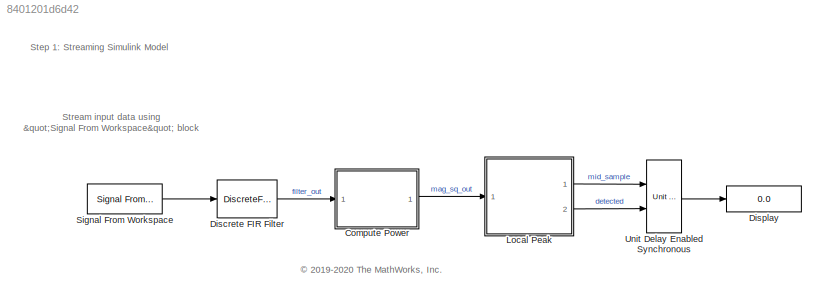
MODEL slx_8401201d6d42
KIND model
CONFIG AbsTol = auto
CONFIG EnableMultiTasking = off
CONFIG FixedStep = auto
CONFIG MaxStep = auto
CONFIG MinStep = auto
CONFIG RelTol = 1e-3
CONFIG SampleTimeConstraint = Unconstrained
CONFIG Solver = VariableStepAuto
CONFIG SolverName = VariableStepAuto
CONFIG StartTime = 0.0
CONFIG StopTime = SimTime
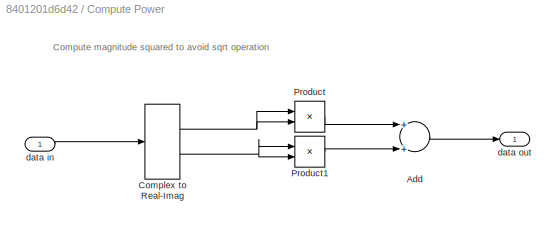
BLOCK [SubSystem] Compute Power
  Ports = [1, 1]
  RequestExecContextInheritance = off
BLOCK [Sum] Compute Power/Add
  InputSameDT = off
  OutDataTypeStr = Inherit: Inherit via internal rule
  Ports = [2, 1]
  SaturateOnIntegerOverflow = off
BLOCK [ComplexToRealImag] Compute Power/Complex to Real-Imag
  Ports = [1, 2]
BLOCK [Product] Compute Power/Product
  InputSameDT = off
  OutDataTypeStr = Inherit: Inherit via internal rule
  Ports = [2, 1]
  RndMeth = Floor
  SaturateOnIntegerOverflow = off
BLOCK [Product] Compute Power/Product1
  InputSameDT = off
  OutDataTypeStr = Inherit: Inherit via internal rule
  Ports = [2, 1]
  RndMeth = Floor
  SaturateOnIntegerOverflow = off
BLOCK [Inport] Compute Power/data in
  IconDisplay = Port number
BLOCK [Outport] Compute Power/data out
  IconDisplay = Port number
  VectorParamsAs1DForOutWhenUnconnected = off
BLOCK [DiscreteFir] Discrete FIR Filter
  Coefficients = CorrFilter
  InputPortMap = u0
  OutputPortMap = o0
  Ports = [1, 1]
BLOCK [Display] Display
  Decimation = 1
  Ports = [1]
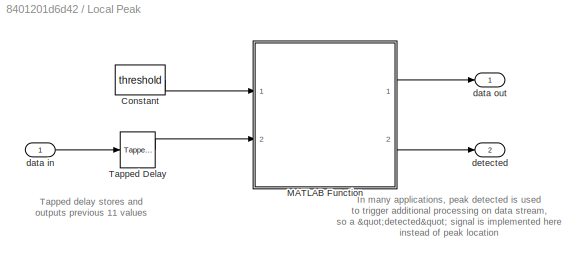
BLOCK [SubSystem] Local Peak
  Ports = [1, 2]
  RequestExecContextInheritance = off
BLOCK [Constant] Local Peak/Constant
  Value = threshold
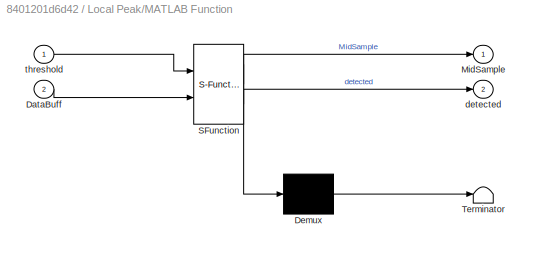
BLOCK [SubSystem] Local Peak/MATLAB Function
  ErrorFcn = Stateflow.Translate.translate
  PermitHierarchicalResolution = ExplicitOnly
  Ports = [2, 2]
  RequestExecContextInheritance = off
  SFBlockType = MATLAB Function
  TreatAsAtomicUnit = on
BLOCK [Demux] Local Peak/MATLAB Function/ Demux 
  Outputs = 1
  Ports = [1, 1]
BLOCK [S-Function] Local Peak/MATLAB Function/ SFunction 
  EnableBusSupport = off
  FunctionName = sf_sfun
  Parameters = WindowLen
  PortCounts = [2 3]
  Ports = [2, 3]
  SFcnIsStateOwnerBlock = off
  SFunctionDeploymentMode = off
  Tag = Stateflow S-Function 2
BLOCK [Terminator] Local Peak/MATLAB Function/ Terminator 
BLOCK [Inport] Local Peak/MATLAB Function/DataBuff
  IconDisplay = Port number
  Port = 2
BLOCK [Outport] Local Peak/MATLAB Function/MidSample
  IconDisplay = Port number
  VectorParamsAs1DForOutWhenUnconnected = off
BLOCK [Outport] Local Peak/MATLAB Function/detected
  IconDisplay = Port number
  Port = 2
  VectorParamsAs1DForOutWhenUnconnected = off
BLOCK [Inport] Local Peak/MATLAB Function/threshold
  IconDisplay = Port number
BLOCK [Reference] Local Peak/Tapped Delay  REF=simulink/Discrete/Tapped Delay
  Ports = [1, 1]
  SourceBlock = simulink/Discrete/Tapped Delay
  SourceProductBaseCode = SL
  SourceProductName = Simulink
  SourceType = Tapped Delay Line
BLOCK [Inport] Local Peak/data in
  IconDisplay = Port number
BLOCK [Outport] Local Peak/data out
  IconDisplay = Port number
  VectorParamsAs1DForOutWhenUnconnected = off
BLOCK [Outport] Local Peak/detected
  IconDisplay = Port number
  Port = 2
  VectorParamsAs1DForOutWhenUnconnected = off
BLOCK [Reference] Signal From Workspace  REF=dspsrcs4/Signal From
Workspace
  Ports = [0, 1]
  SourceBlock = dspsrcs4/Signal From\nWorkspace
  SourceProductBaseCode = DS
  SourceProductName = DSP System Toolbox
  SourceType = Signal From Workspace
BLOCK [Reference] Unit Delay Enabled Synchronous  REF=hdlsllib/Discrete/Unit Delay Enabled
Synchronous
  Ports = [2, 1]
  SourceBlock = hdlsllib/Discrete/Unit Delay Enabled\nSynchronous
  SourceProductBaseCode = HD
  SourceProductName = HDL Coder
  SourceType = Unit Delay Enabled Synchronous
ANNOTATION (root): Stream input data using "Signal From Workspace" block
ANNOTATION (root): Step 1: Streaming Simulink Model
ANNOTATION (root): <copyright redacted>
ANNOTATION Compute Power: Compute magnitude squared to avoid sqrt operation
ANNOTATION Local Peak: In many applications, peak detected is used to trigger additional processing on data stream, so a "detected" signal is implemented here instead of peak location
ANNOTATION Local Peak: Tapped delay stores and outputs previous 11 values
LINE Compute Power/Add:1 -> Compute Power/data out:1
NET Compute Power/Complex to Real-Imag:1 -> Compute Power/Product:1, Compute Power/Product:2
NET Compute Power/Complex to Real-Imag:2 -> Compute Power/Product1:1, Compute Power/Product1:2
LINE Compute Power/Product1:1 -> Compute Power/Add:2
LINE Compute Power/Product:1 -> Compute Power/Add:1
LINE Compute Power/data in:1 -> Compute Power/Complex to Real-Imag:1
LINE Compute Power:1 -> Local Peak:1
LINE Discrete FIR Filter:1 -> Compute Power:1
LINE Local Peak/Constant:1 -> Local Peak/MATLAB Function:1
LINE Local Peak/MATLAB Function:1 -> Local Peak/data out:1
LINE Local Peak/MATLAB Function:2 -> Local Peak/detected:1
LINE Local Peak/Tapped Delay:1 -> Local Peak/MATLAB Function:2
LINE Local Peak/data in:1 -> Local Peak/Tapped Delay:1
LINE Local Peak:1 -> Unit Delay Enabled Synchronous:1
LINE Local Peak:2 -> Unit Delay Enabled Synchronous:2
LINE Signal From Workspace:1 -> Discrete FIR Filter:1
LINE Unit Delay Enabled Synchronous:1 -> Display:1
note: NET lines group one-source signal fan-out (src -> all destinations, sorted); 1:1 wires keep LINE
CHART Local Peak/MATLAB Function states=1 transitions=1
  STATE_LABEL 'eML_blk_kernel()'
  STATE_LABEL 'SCRIPT:\n% Hardware friendly implementation of peak finder\n%\n% Function inputs:\n% * WindowLen - non-tunable parameter defined under Simulink->Edit Data\n% * threhold  - input port (connected to constant)\n% * DataBuff  - input port (buffering done using Simulink block)\n%\n% Function outputs:\n% * "detected" is set when MidSample is local max\n\nfunction [MidSample,detected] = fcn(WindowLen, threshold, Da...<+416ch>'
